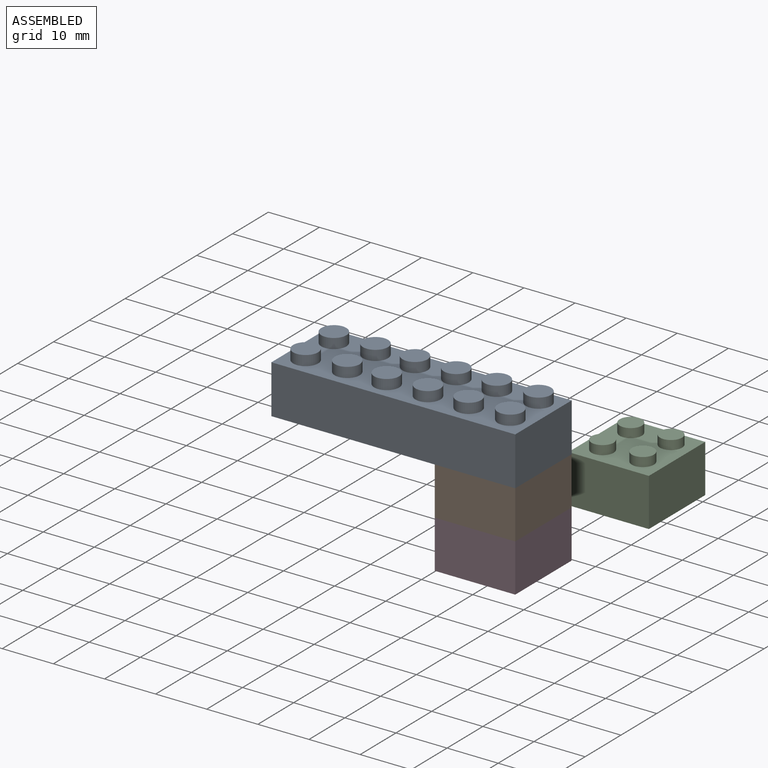
[diagram: assembled view]
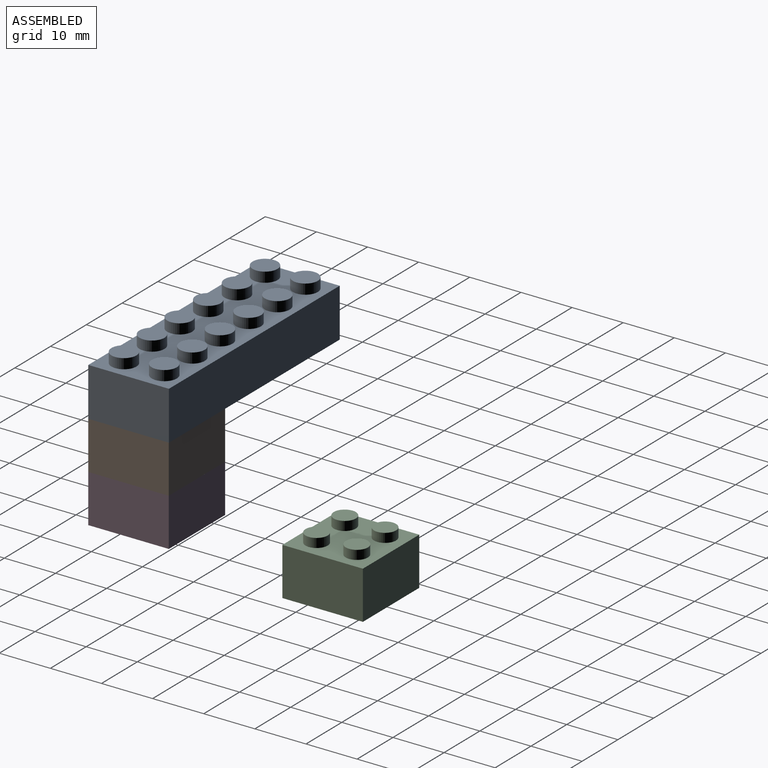
[diagram: assembled view, second angle]
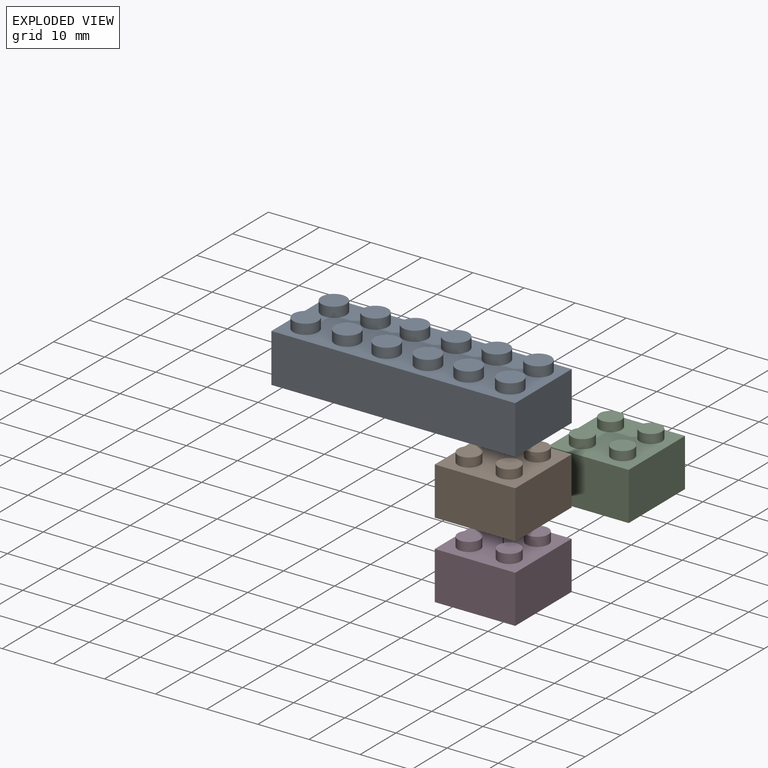
[diagram: exploded view]
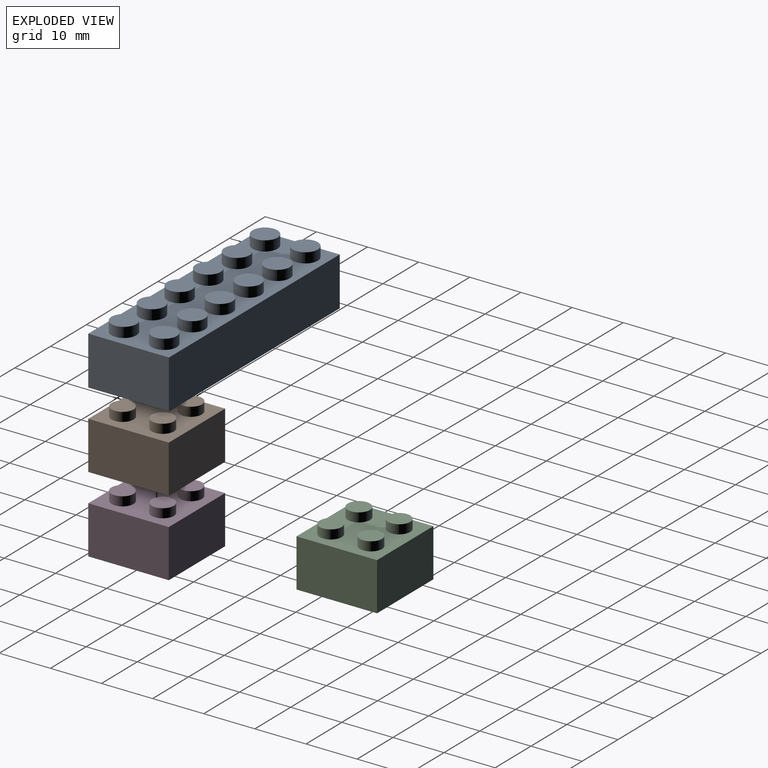
[diagram: exploded view, second angle]
ASSEMBLY  parts=4 mates=3
PART A: 55 faces, bbox 47.7x15.8x11.5 mm
  f0: plane 47.7x9.53mm, normal (0,-1,0), area 454.4mm2, adj f1,f3,f4,f5
  f1: plane 15.77x9.53mm, normal (1,0,0), area 150.2mm2, adj f0,f2,f4,f5
  f2: plane 47.7x9.53mm, normal (0,1,0), area 454.4mm2, adj f1,f3,f4,f5
  f3: plane 15.77x9.53mm, normal (-1,0,0), area 150.2mm2, adj f0,f2,f4,f5
  f4: plane 47.7x15.77mm, normal (0,0,1), area 527.1mm2, adj f0,f1,f2,f3,f6,f8,f10,f12
  f5: plane 47.7x15.77mm, normal (0,0,-1), area 175.7mm2, adj f0,f1,f2,f3,f30,f31,f32,f33
  f6: cylinder r=2.44mm len=4.89mm, axis (0,0,-1), area 30.2mm2, adj f4,f7
  f7: plane 4.89x4.89mm, normal (0,0,1), area 18.8mm2, adj f6
  f8: cylinder r=2.44mm len=4.89mm, axis (0,0,-1), area 30.2mm2, adj f4,f9
  f9: plane 4.89x4.89mm, normal (0,0,1), area 18.8mm2, adj f8
  f10: cylinder r=2.44mm len=4.89mm, axis (0,0,-1), area 30.2mm2, adj f4,f11
  f11: plane 4.89x4.89mm, normal (0,0,1), area 18.8mm2, adj f10
  f12: cylinder r=2.44mm len=4.89mm, axis (0,0,-1), area 30.2mm2, adj f4,f13
  f13: plane 4.89x4.89mm, normal (0,0,1), area 18.8mm2, adj f12
  f14: cylinder r=2.44mm len=4.89mm, axis (0,0,-1), area 30.2mm2, adj f4,f15
  f15: plane 4.89x4.89mm, normal (0,0,1), area 18.8mm2, adj f14
  f16: cylinder r=2.44mm len=4.89mm, axis (0,0,-1), area 30.2mm2, adj f4,f17
  f17: plane 4.89x4.89mm, normal (0,0,1), area 18.8mm2, adj f16
  f18: cylinder r=2.44mm len=4.89mm, axis (0,0,-1), area 30.2mm2, adj f4,f19
  f19: plane 4.89x4.89mm, normal (0,0,1), area 18.8mm2, adj f18
  f20: cylinder r=2.44mm len=4.89mm, axis (0,0,-1), area 30.2mm2, adj f4,f21
  f21: plane 4.89x4.89mm, normal (0,0,1), area 18.8mm2, adj f20
  f22: cylinder r=2.44mm len=4.89mm, axis (0,0,-1), area 30.2mm2, adj f4,f23
  f23: plane 4.89x4.89mm, normal (0,0,1), area 18.8mm2, adj f22
  f24: cylinder r=2.44mm len=4.89mm, axis (0,0,-1), area 30.2mm2, adj f4,f25
  f25: plane 4.89x4.89mm, normal (0,0,1), area 18.8mm2, adj f24
  f26: cylinder r=2.44mm len=4.89mm, axis (0,0,-1), area 30.2mm2, adj f4,f27
  f27: plane 4.89x4.89mm, normal (0,0,1), area 18.8mm2, adj f26
  f28: cylinder r=2.44mm len=4.89mm, axis (0,0,-1), area 30.2mm2, adj f4,f29
  f29: plane 4.89x4.89mm, normal (0,0,1), area 18.8mm2, adj f28
  f30: plane 12.78x8.38mm, normal (1,0,0), area 107.1mm2, adj f5,f31,f33,f34
  f31: plane 45.14x8.38mm, normal (0,-1,0), area 378.3mm2, adj f5,f30,f32,f34
  f32: plane 12.78x8.38mm, normal (-1,0,0), area 107.1mm2, adj f5,f31,f33,f34
  f33: plane 45.14x8.38mm, normal (0,1,0), area 378.3mm2, adj f5,f30,f32,f34
  f34: plane 45.14x12.78mm, normal (0,0,-1), area 400.1mm2, adj f30,f31,f32,f33,f35,f37,f39,f41
  f35: cylinder r=3.35mm len=8.38mm, axis (0,0,1), area 176.6mm2, adj f34,f36
  f36: plane 6.71x6.71mm, normal (0,0,-1), area 15mm2, adj f35,f53
  f37: cylinder r=3.35mm len=8.38mm, axis (0,0,1), area 176.6mm2, adj f34,f38
  f38: plane 6.71x6.71mm, normal (0,0,-1), area 15mm2, adj f37,f51
  f39: cylinder r=3.35mm len=8.38mm, axis (0,0,1), area 176.6mm2, adj f34,f40
  f40: plane 6.71x6.71mm, normal (0,0,-1), area 15mm2, adj f39,f49
  f41: cylinder r=3.35mm len=8.38mm, axis (0,0,1), area 176.6mm2, adj f34,f42
  f42: plane 6.71x6.71mm, normal (0,0,-1), area 15mm2, adj f41,f47
  f43: cylinder r=3.35mm len=8.38mm, axis (0,0,1), area 176.6mm2, adj f34,f44
  f44: plane 6.71x6.71mm, normal (0,0,-1), area 15mm2, adj f43,f45
  f45: cylinder r=2.54mm len=8.38mm, axis (0,0,-1), area 133.8mm2, adj f44,f46
  f46: plane 5.08x5.08mm, normal (0,0,-1), area 20.3mm2, adj f45
  f47: cylinder r=2.54mm len=8.38mm, axis (0,0,-1), area 133.8mm2, adj f42,f48
  f48: plane 5.08x5.08mm, normal (0,0,-1), area 20.3mm2, adj f47
  f49: cylinder r=2.54mm len=8.38mm, axis (0,0,-1), area 133.8mm2, adj f40,f50
  f50: plane 5.08x5.08mm, normal (0,0,-1), area 20.3mm2, adj f49
  f51: cylinder r=2.54mm len=8.38mm, axis (0,0,-1), area 133.8mm2, adj f38,f52
  f52: plane 5.08x5.08mm, normal (0,0,-1), area 20.3mm2, adj f51
  f53: cylinder r=2.54mm len=8.38mm, axis (0,0,-1), area 133.8mm2, adj f36,f54
  f54: plane 5.08x5.08mm, normal (0,0,-1), area 20.3mm2, adj f53
PART B: 23 faces, bbox 15.7x15.7x11.2 mm
  f0: plane 15.75x9.4mm, normal (-1,0,0), area 148mm2, adj f1,f7,f8,f22
  f1: plane 15.75x9.4mm, normal (0,-1,0), area 148mm2, adj f0,f2,f8,f22
  f2: plane 15.75x9.4mm, normal (1,0,0), area 148mm2, adj f1,f7,f8,f22
  f3: plane 13.21x8.13mm, normal (0,1,0), area 107.4mm2, adj f4,f6,f8,f13
  f4: plane 13.21x8.13mm, normal (1,0,0), area 107.4mm2, adj f3,f5,f8,f13
  f5: plane 13.21x8.13mm, normal (0,-1,0), area 107.4mm2, adj f4,f6,f8,f13
  f6: plane 13.21x8.13mm, normal (-1,0,0), area 107.4mm2, adj f3,f5,f8,f13
  f7: plane 15.75x9.4mm, normal (0,1,0), area 148mm2, adj f0,f2,f8,f22
  f8: plane 15.75x15.75mm, normal (0,0,-1), area 73.5mm2, adj f0,f1,f2,f3,f4,f5,f6,f7
  f9: plane 4.57x4.57mm, normal (0,0,-1), area 16.4mm2, adj f12
  f10: plane 6.35x6.35mm, normal (0,0,-1), area 15.3mm2, adj f11,f12
  f11: cylinder r=3.17mm len=8.13mm, axis (0,0,-1), area 162.1mm2, adj f10,f13
  f12: cylinder r=2.29mm len=8.13mm, axis (0,0,-1), area 116.7mm2, adj f9,f10
  f13: plane 13.21x13.21mm, normal (0,0,-1), area 142.8mm2, adj f3,f4,f5,f6,f11
  f14: plane 4.32x4.32mm, normal (0,0,1), area 14.6mm2, adj f15
  f15: cylinder r=2.16mm len=4.32mm, axis (0,0,-1), area 24.1mm2, adj f14,f22
  f16: plane 4.32x4.32mm, normal (0,0,1), area 14.6mm2, adj f17
  f17: cylinder r=2.16mm len=4.32mm, axis (0,0,-1), area 24.1mm2, adj f16,f22
  f18: plane 4.32x4.32mm, normal (0,0,1), area 14.6mm2, adj f19
  f19: cylinder r=2.16mm len=4.32mm, axis (0,0,-1), area 24.1mm2, adj f18,f22
  f20: plane 4.32x4.32mm, normal (0,0,1), area 14.6mm2, adj f21
  f21: cylinder r=2.16mm len=4.32mm, axis (0,0,-1), area 24.1mm2, adj f20,f22
  f22: plane 15.75x15.75mm, normal (0,0,1), area 189.4mm2, adj f0,f1,f2,f7,f15,f17,f19,f21
PART C: same geometry as B
PART D: same geometry as B
PLACE A t=(0,0,-3.11)mm
PLACE B t=(8.1,-7.89,-12.51)mm
PLACE C t=(7.81,29.87,-24.81)mm
PLACE D t=(8.1,-7.89,-21.9)mm
MATE planar B.f22 <-> A.f5  axis (0,0,1) through (23.85,-7.89,-3.11)mm
MATE planar A.f5 <-> B.f22  axis (0,0,-1) through (23.85,-7.89,-3.11)mm
MATE planar D.f22 <-> B.f8  axis (0,0,1) through (23.85,7.86,-12.51)mm
